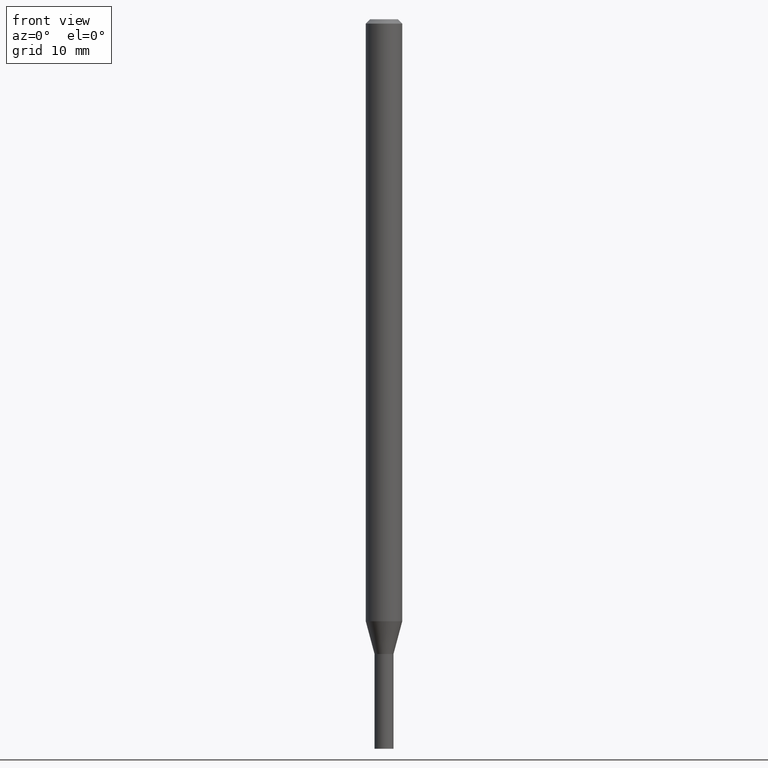
[diagram: clean part render]
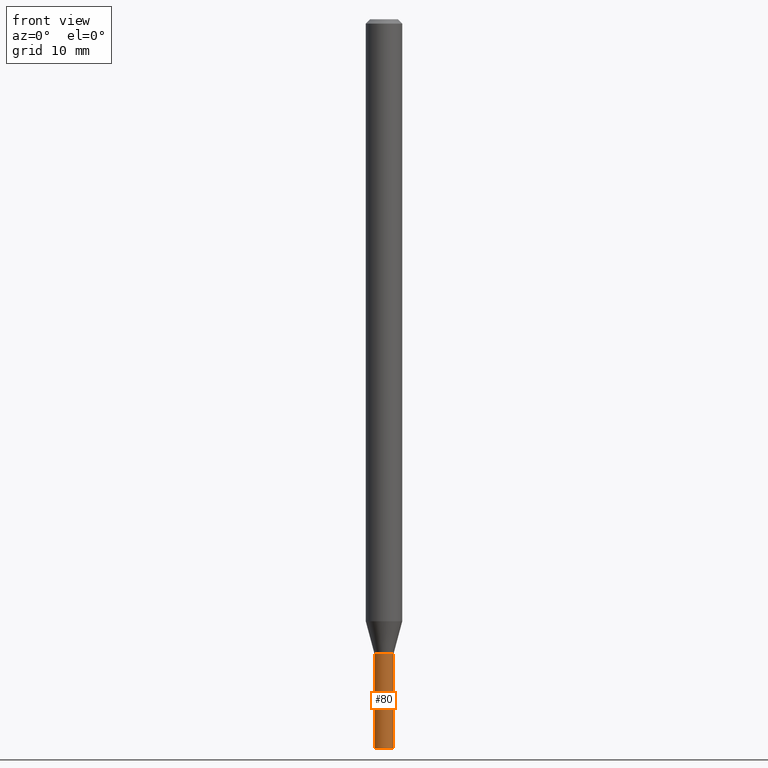
[diagram: same view with one face highlighted and labeled with its STEP entity id]
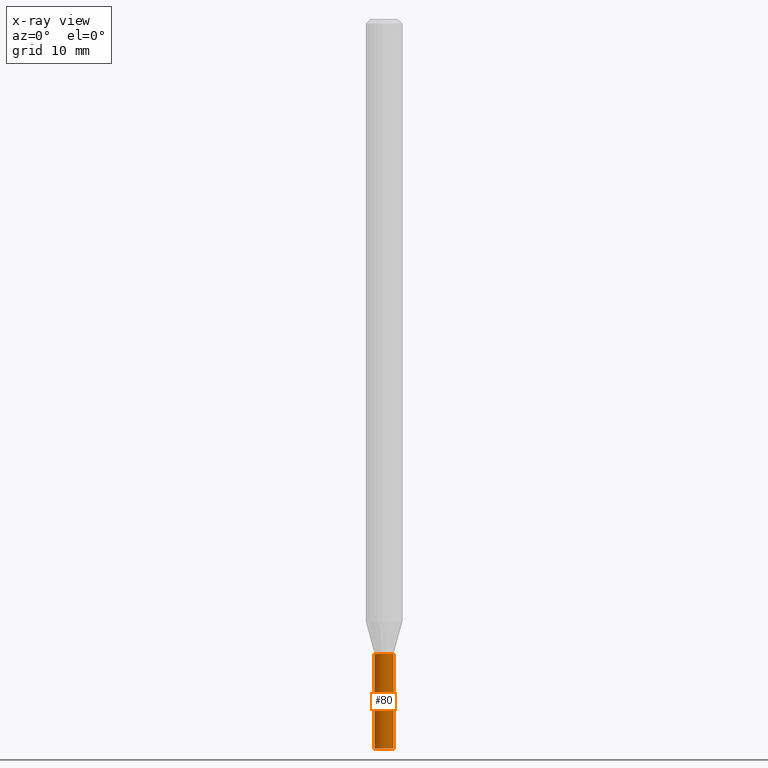
[diagram: x-ray of the same camera — body ghosted, the highlighted face saturated]
A machine part, front view. The second image highlights one B-rep face of the part: STEP entity #80.
The next image is the same camera in x-ray: the body ghosted, the highlighted face saturated — about 0% of this face is hidden behind the body in this view.
In plain terms, the highlighted cylindrical surface (edge-blend (fillet) strip) has radius 0.8255 mm, axis along (-0, 0, 1).
Its self-contained STEP definition (entity closure, byte-faithful):
#8 = CARTESIAN_POINT ( 'NONE',  ( -0.03250000000000000111, -7.930411240423821035E-15, -2.175000000000000266 ) ) ;
#11 = CARTESIAN_POINT ( 'NONE',  ( 0.000000000000000000, 0.000000000000000000, 0.000000000000000000 ) ) ;
#34 = CARTESIAN_POINT ( 'NONE',  ( 6.113672015462842613E-29, -8.728703347107864943E-15, -2.500000000000000000 ) ) ;
#35 = CIRCLE ( 'NONE', #253, 0.03250000000000000111 ) ;
#44 = VERTEX_POINT ( 'NONE', #308 ) ;
#49 = ORIENTED_EDGE ( 'NONE', *, *, #446, .T. ) ;
#59 = EDGE_CURVE ( 'NONE', #171, #44, #134, .T. ) ;
#77 = CYLINDRICAL_SURFACE ( 'NONE', #305, 0.03250000000000000111 ) ;
#80 = ADVANCED_FACE ( 'NONE', ( #397 ), #77, .T. ) ;
#82 = VECTOR ( 'NONE', #402, 39.37007874015748143 ) ;
#92 = VERTEX_POINT ( 'NONE', #8 ) ;
#98 = EDGE_CURVE ( 'NONE', #343, #92, #290, .T. ) ;
#103 = DIRECTION ( 'NONE',  ( -2.445468806185136877E-29, 3.491481338843145188E-15, 1.000000000000000000 ) ) ;
#106 = DIRECTION ( 'NONE',  ( 1.000000000000000000, -6.982962677686258033E-15, 0.000000000000000000 ) ) ;
#121 = DIRECTION ( 'NONE',  ( -2.445468806185136597E-29, 3.491481338843145583E-15, 1.000000000000000000 ) ) ;
#124 = EDGE_LOOP ( 'NONE', ( #372, #49, #229, #359 ) ) ;
#134 = LINE ( 'NONE', #420, #443 ) ;
#171 = VERTEX_POINT ( 'NONE', #276 ) ;
#179 = CARTESIAN_POINT ( 'NONE',  ( 5.318894653452672995E-29, -7.593971911983841869E-15, -2.175000000000000266 ) ) ;
#180 = DIRECTION ( 'NONE',  ( -2.445468806185136597E-29, 3.491481338843145583E-15, 1.000000000000000000 ) ) ;
#187 = DIRECTION ( 'NONE',  ( 1.000000000000000000, -6.982962677686265922E-15, 4.876176775795935232E-29 ) ) ;
#202 = AXIS2_PLACEMENT_3D ( 'NONE', #179, #386, #106 ) ;
#227 = CARTESIAN_POINT ( 'NONE',  ( -0.03250000000000000111, 2.309263891220325683E-16, -1.598653904332844407E-30 ) ) ;
#229 = ORIENTED_EDGE ( 'NONE', *, *, #59, .T. ) ;
#249 = CIRCLE ( 'NONE', #202, 0.03250000000000000111 ) ;
#253 = AXIS2_PLACEMENT_3D ( 'NONE', #34, #180, #330 ) ;
#276 = CARTESIAN_POINT ( 'NONE',  ( 0.03250000000000000111, -8.955649634132668295E-15, -2.500000000000000000 ) ) ;
#290 = LINE ( 'NONE', #227, #82 ) ;
#305 = AXIS2_PLACEMENT_3D ( 'NONE', #11, #121, #187 ) ;
#308 = CARTESIAN_POINT ( 'NONE',  ( 0.03250000000000000111, -7.820918199008645222E-15, -2.175000000000000266 ) ) ;
#317 = CARTESIAN_POINT ( 'NONE',  ( -0.03250000000000000111, -7.930411240423821035E-15, -2.500000000000000000 ) ) ;
#330 = DIRECTION ( 'NONE',  ( 1.000000000000000000, -6.982962677686287221E-15, 0.000000000000000000 ) ) ;
#343 = VERTEX_POINT ( 'NONE', #317 ) ;
#359 = ORIENTED_EDGE ( 'NONE', *, *, #405, .F. ) ;
#372 = ORIENTED_EDGE ( 'NONE', *, *, #98, .F. ) ;
#386 = DIRECTION ( 'NONE',  ( -2.445468806185136597E-29, 3.491481338843145583E-15, 1.000000000000000000 ) ) ;
#397 = FACE_OUTER_BOUND ( 'NONE', #124, .T. ) ;
#402 = DIRECTION ( 'NONE',  ( -2.445468806185136877E-29, 3.491481338843145188E-15, 1.000000000000000000 ) ) ;
#405 = EDGE_CURVE ( 'NONE', #92, #44, #249, .T. ) ;
#420 = CARTESIAN_POINT ( 'NONE',  ( 0.03250000000000000111, -2.269462870248036484E-16, 1.584757452133678993E-30 ) ) ;
#443 = VECTOR ( 'NONE', #103, 39.37007874015748143 ) ;
#446 = EDGE_CURVE ( 'NONE', #343, #171, #35, .T. ) ;